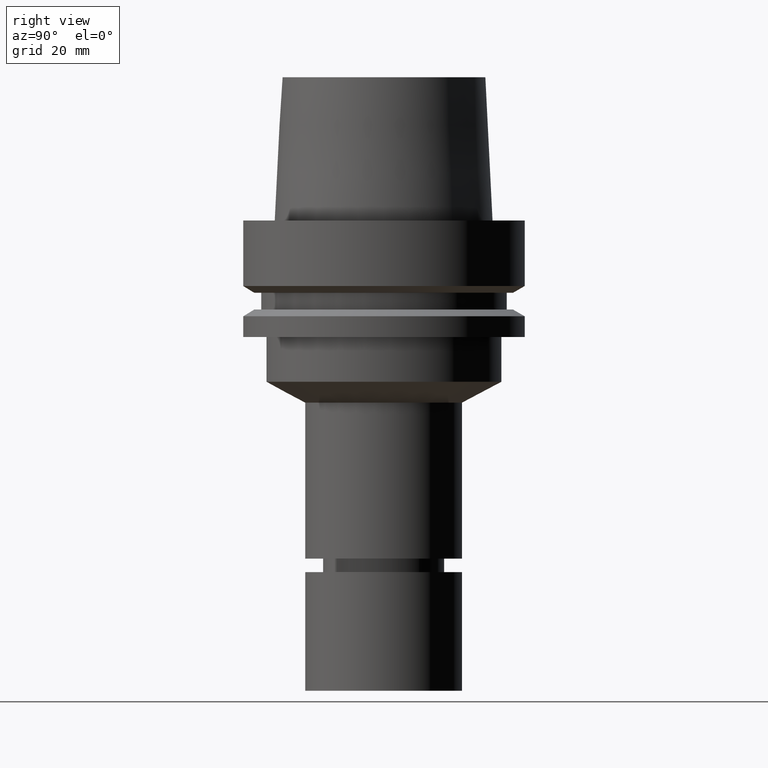
[diagram: clean part render]
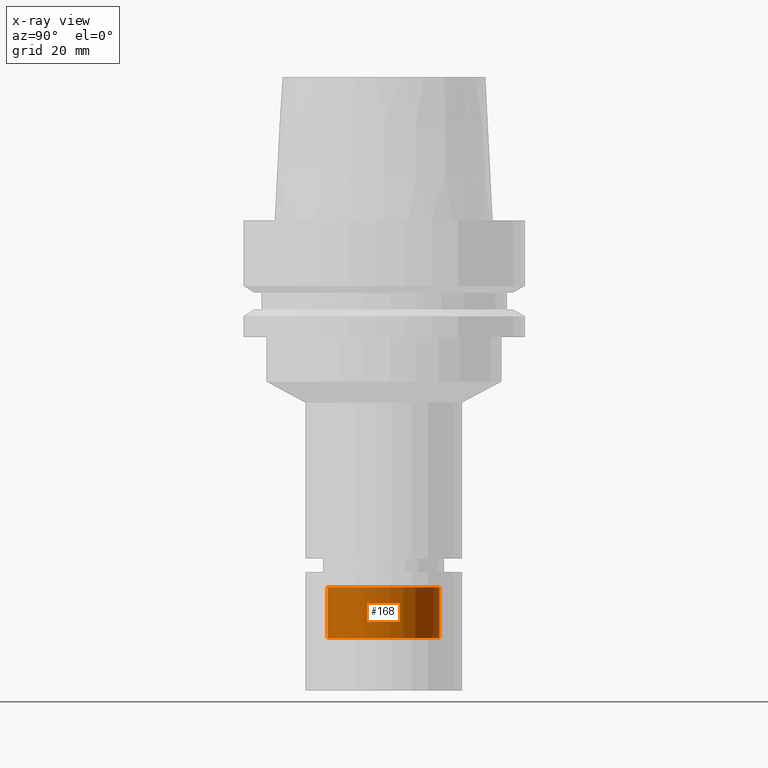
[diagram: x-ray — body ghosted, one internal face saturated and labeled with its STEP entity id]
A machine part, right view, then the same camera in x-ray: the body is ghosted and one INTERNAL B-rep face — a face not visible from any outside direction — is saturated and labeled: STEP entity #168.
In plain terms, the highlighted cylindrical surface (bore or boss wall) has radius 12.5 mm, axis along (-0, -0, 1).
Its self-contained STEP definition (entity closure, byte-faithful):
#115=EDGE_CURVE('Unnamed[1]',#270,#270,#271,.T.);
#168=ADVANCED_FACE('Unnamed[1]',(#350,#351),#352,.T.);
#182=EDGE_CURVE('Unnamed[1]',#373,#373,#374,.T.);
#270=VERTEX_POINT('',#475);
#271=CIRCLE('',#476,12.4999999999998);
#350=FACE_BOUND('',#574,.T.);
#351=FACE_BOUND('',#575,.T.);
#352=CYLINDRICAL_SURFACE('',#576,12.4999999999999);
#373=VERTEX_POINT('',#603);
#374=CIRCLE('',#604,12.4999999999999);
#475=CARTESIAN_POINT('',(5.71265548768156E-015,12.4999999999998,-93.2947441116725));
#476=AXIS2_PLACEMENT_3D('',#690,#691,#692);
#574=EDGE_LOOP('',(#779));
#575=EDGE_LOOP('',(#780));
#576=AXIS2_PLACEMENT_3D('',#781,#782,#783);
#603=CARTESIAN_POINT('',(5.01490875023965E-015,12.4999999999999,-81.8996751345975));
#604=AXIS2_PLACEMENT_3D('',#805,#806,#807);
#690=CARTESIAN_POINT('',(5.71265548768156E-015,1.14253109753631E-014,-93.2947441116725));
#691=DIRECTION('',(-6.12323399573677E-017,-1.22464679914735E-016,1.0));
#692=DIRECTION('',(-1.23259516440783E-032,1.0,1.22464679914735E-016));
#779=ORIENTED_EDGE('',*,*,#182,.F.);
#780=ORIENTED_EDGE('',*,*,#115,.T.);
#781=CARTESIAN_POINT('',(5.3637821189606E-015,1.07275642379212E-014,-87.597209623135));
#782=DIRECTION('',(-6.12323399573677E-017,-1.22464679914735E-016,1.0));
#783=DIRECTION('',(-1.23259516440783E-032,1.0,1.22464679914735E-016));
#805=CARTESIAN_POINT('',(5.01490875023965E-015,1.00298175004793E-014,-81.8996751345975));
#806=DIRECTION('',(-6.12323399573677E-017,-1.22464679914735E-016,1.0));
#807=DIRECTION('',(-1.23259516440783E-032,1.0,1.22464679914735E-016));